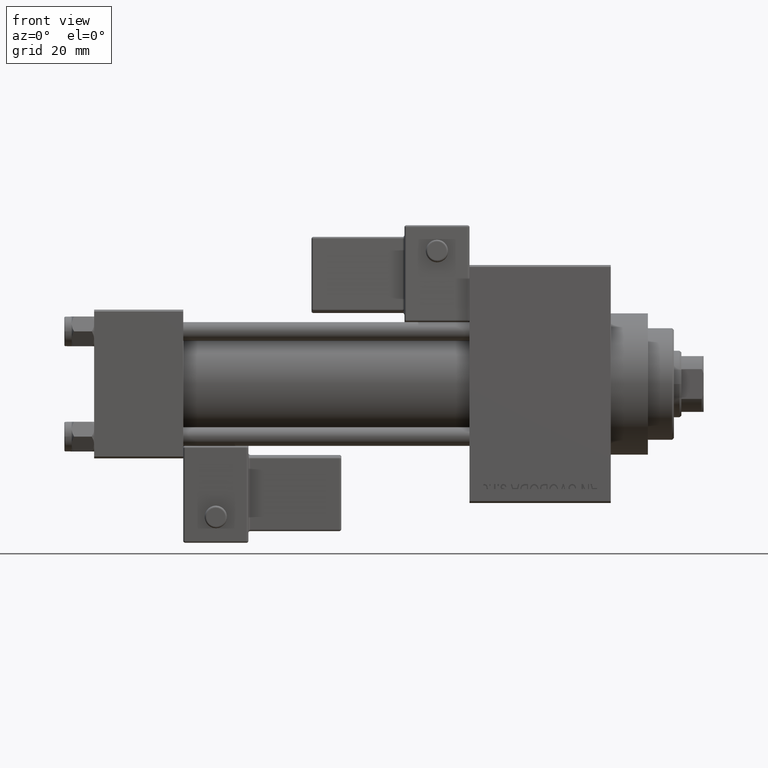
[diagram: clean part render]
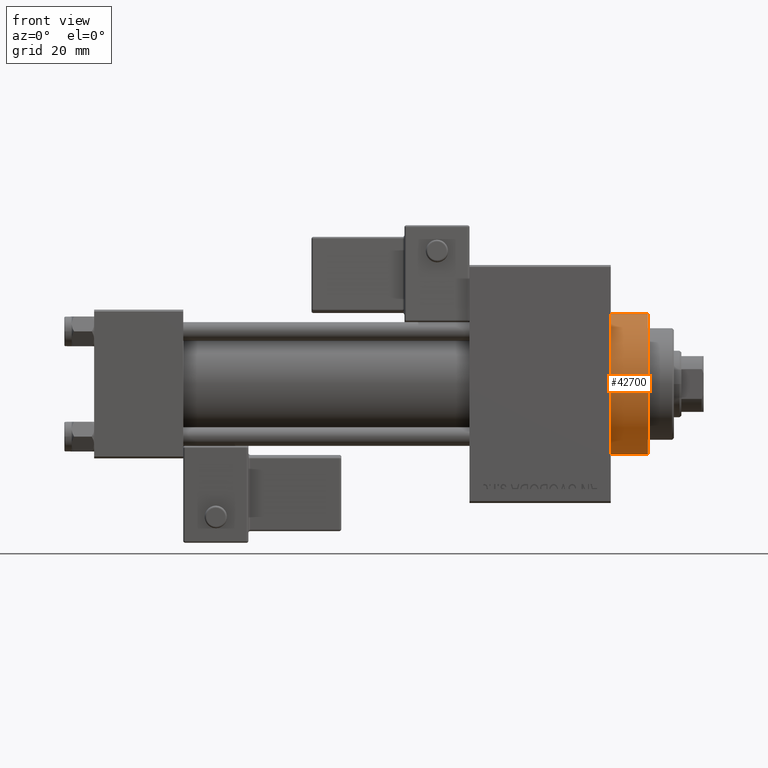
[diagram: same view with one face highlighted and labeled with its STEP entity id]
A machine part, front view. The second image highlights one B-rep face of the part: STEP entity #42700.
In plain terms, the highlighted cylindrical surface (partial cylindrical patch) has radius 19 mm, axis along (-1, -0, -0).
Its self-contained STEP definition (entity closure, byte-faithful):
#186 = CARTESIAN_POINT ( 'NONE',  ( 149.0000000000000284, 0.000000000000000000, 0.000000000000000000 ) ) ;
#3236 = ORIENTED_EDGE ( 'NONE', *, *, #43718, .F. ) ;
#4877 = EDGE_CURVE ( 'NONE', #10760, #39585, #49185, .T. ) ;
#5258 = AXIS2_PLACEMENT_3D ( 'NONE', #38203, #19232, #30727 ) ;
#8653 = DIRECTION ( 'NONE',  ( 1.000000000000000000, 0.000000000000000000, 0.000000000000000000 ) ) ;
#8821 = CARTESIAN_POINT ( 'NONE',  ( 139.0000000000000000, 0.000000000000000000, 0.000000000000000000 ) ) ;
#9872 = CARTESIAN_POINT ( 'NONE',  ( 149.0000000000000284, 2.326828918379970970E-15, -19.00000000000000000 ) ) ;
#10760 = VERTEX_POINT ( 'NONE', #32192 ) ;
#11230 = CYLINDRICAL_SURFACE ( 'NONE', #5258, 19.00000000000000000 ) ;
#11810 = AXIS2_PLACEMENT_3D ( 'NONE', #8821, #20315, #28318 ) ;
#12168 = CIRCLE ( 'NONE', #39270, 19.00000000000000000 ) ;
#12324 = ORIENTED_EDGE ( 'NONE', *, *, #4877, .T. ) ;
#13517 = VERTEX_POINT ( 'NONE', #23457 ) ;
#14884 = ORIENTED_EDGE ( 'NONE', *, *, #18973, .T. ) ;
#15236 = DIRECTION ( 'NONE',  ( -1.000000000000000000, -0.000000000000000000, -0.000000000000000000 ) ) ;
#18973 = EDGE_CURVE ( 'NONE', #39585, #24950, #45275, .T. ) ;
#19232 = DIRECTION ( 'NONE',  ( -1.000000000000000000, -0.000000000000000000, -0.000000000000000000 ) ) ;
#19970 = VECTOR ( 'NONE', #15236, 1000.000000000000000 ) ;
#20315 = DIRECTION ( 'NONE',  ( 1.000000000000000000, 0.000000000000000000, 0.000000000000000000 ) ) ;
#23457 = CARTESIAN_POINT ( 'NONE',  ( 149.0000000000000284, 2.326828918379970970E-15, -19.00000000000000000 ) ) ;
#23913 = DIRECTION ( 'NONE',  ( 0.000000000000000000, 0.000000000000000000, -1.000000000000000000 ) ) ;
#24404 = DIRECTION ( 'NONE',  ( -1.000000000000000000, -0.000000000000000000, -0.000000000000000000 ) ) ;
#24473 = ORIENTED_EDGE ( 'NONE', *, *, #32079, .F. ) ;
#24950 = VERTEX_POINT ( 'NONE', #45166 ) ;
#27836 = EDGE_LOOP ( 'NONE', ( #3236, #24473, #12324, #14884 ) ) ;
#28318 = DIRECTION ( 'NONE',  ( 0.000000000000000000, 0.000000000000000000, -1.000000000000000000 ) ) ;
#30009 = VECTOR ( 'NONE', #24404, 1000.000000000000000 ) ;
#30488 = CARTESIAN_POINT ( 'NONE',  ( 149.0000000000000284, 0.000000000000000000, 19.00000000000000000 ) ) ;
#30727 = DIRECTION ( 'NONE',  ( 0.000000000000000000, 0.000000000000000000, 1.000000000000000000 ) ) ;
#32079 = EDGE_CURVE ( 'NONE', #10760, #13517, #12168, .T. ) ;
#32192 = CARTESIAN_POINT ( 'NONE',  ( 149.0000000000000284, 0.000000000000000000, 19.00000000000000000 ) ) ;
#38203 = CARTESIAN_POINT ( 'NONE',  ( 149.0000000000000284, 0.000000000000000000, 0.000000000000000000 ) ) ;
#39270 = AXIS2_PLACEMENT_3D ( 'NONE', #186, #8653, #23913 ) ;
#39585 = VERTEX_POINT ( 'NONE', #40290 ) ;
#40290 = CARTESIAN_POINT ( 'NONE',  ( 139.0000000000000000, 0.000000000000000000, 19.00000000000000000 ) ) ;
#41947 = FACE_OUTER_BOUND ( 'NONE', #27836, .T. ) ;
#42700 = ADVANCED_FACE ( 'NONE', ( #41947 ), #11230, .T. ) ;
#43718 = EDGE_CURVE ( 'NONE', #13517, #24950, #44088, .T. ) ;
#44088 = LINE ( 'NONE', #9872, #30009 ) ;
#45166 = CARTESIAN_POINT ( 'NONE',  ( 139.0000000000000000, 2.326828918379970970E-15, -19.00000000000000000 ) ) ;
#45275 = CIRCLE ( 'NONE', #11810, 19.00000000000000000 ) ;
#49185 = LINE ( 'NONE', #30488, #19970 ) ;